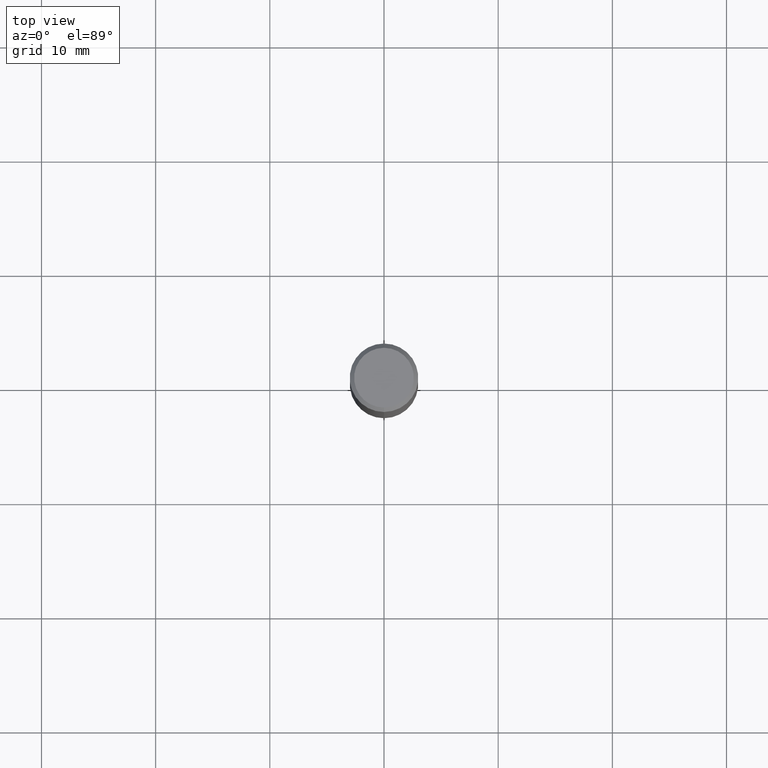
[diagram: clean part render]
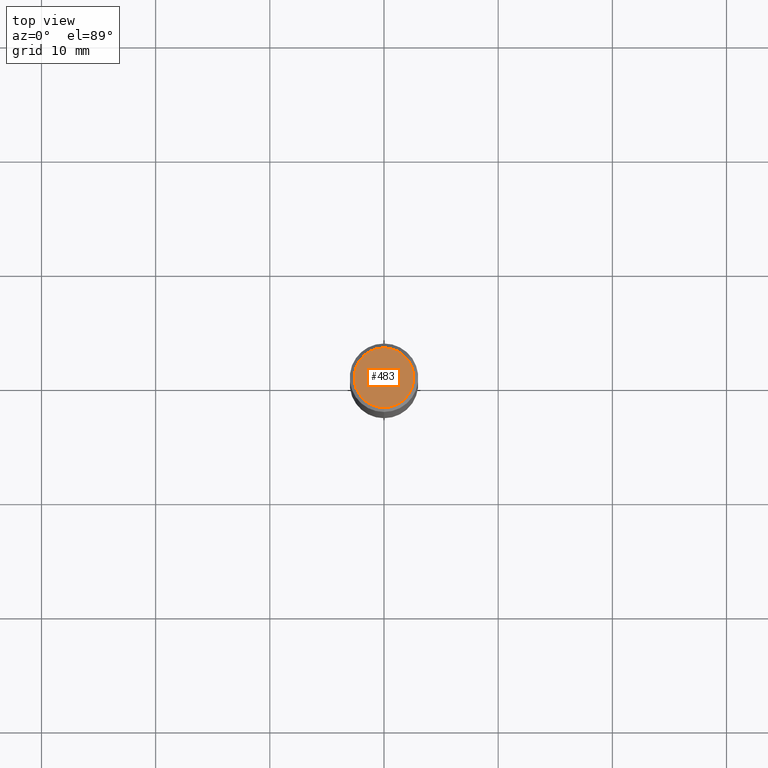
[diagram: same view with one face highlighted and labeled with its STEP entity id]
A machine part, top view. The second image highlights one B-rep face of the part: STEP entity #483.
In plain terms, the highlighted planar face has unit normal (0, -0, -1).
Its self-contained STEP definition (entity closure, byte-faithful):
#13 = DIRECTION ( 'NONE',  ( 2.445721087227315994E-29, -3.491120058031798950E-15, -1.000000000000000000 ) ) ;
#51 = AXIS2_PLACEMENT_3D ( 'NONE', #412, #488, #270 ) ;
#55 = EDGE_LOOP ( 'NONE', ( #429, #92 ) ) ;
#81 = CARTESIAN_POINT ( 'NONE',  ( 7.723156721521011834E-16, 0.1031000000000000111, -3.887509258146911569E-16 ) ) ;
#92 = ORIENTED_EDGE ( 'NONE', *, *, #500, .T. ) ;
#94 = PLANE ( 'NONE',  #408 ) ;
#123 = CIRCLE ( 'NONE', #51, 0.1031000000000000111 ) ;
#137 = DIRECTION ( 'NONE',  ( 6.982962677686265922E-15, 1.000000000000000000, -3.491120058031798950E-15 ) ) ;
#138 = CARTESIAN_POINT ( 'NONE',  ( 7.199434520694541042E-16, 0.1031000000000000111, -1.353060024532617206E-16 ) ) ;
#161 = EDGE_CURVE ( 'NONE', #460, #180, #551, .T. ) ;
#180 = VERTEX_POINT ( 'NONE', #200 ) ;
#200 = CARTESIAN_POINT ( 'NONE',  ( -7.587710785535310407E-16, -0.1031000000000000111, 3.311180301514658338E-16 ) ) ;
#270 = DIRECTION ( 'NONE',  ( -6.982962677686265922E-15, -1.000000000000000000, 3.491120058031798950E-15 ) ) ;
#345 = AXIS2_PLACEMENT_3D ( 'NONE', #565, #554, #469 ) ;
#353 = FACE_OUTER_BOUND ( 'NONE', #55, .T. ) ;
#408 = AXIS2_PLACEMENT_3D ( 'NONE', #138, #13, #137 ) ;
#412 = CARTESIAN_POINT ( 'NONE',  ( 7.059760297607168192E-46, -1.004289602807351628E-31, -2.881644783161265537E-17 ) ) ;
#429 = ORIENTED_EDGE ( 'NONE', *, *, #161, .T. ) ;
#460 = VERTEX_POINT ( 'NONE', #81 ) ;
#469 = DIRECTION ( 'NONE',  ( -6.982962677686265922E-15, -1.000000000000000000, 3.491120058031798950E-15 ) ) ;
#483 = ADVANCED_FACE ( 'NONE', ( #353 ), #94, .F. ) ;
#488 = DIRECTION ( 'NONE',  ( -2.445721087227316555E-29, 3.491120058031798950E-15, 1.000000000000000000 ) ) ;
#500 = EDGE_CURVE ( 'NONE', #180, #460, #123, .T. ) ;
#551 = CIRCLE ( 'NONE', #345, 0.1031000000000000111 ) ;
#554 = DIRECTION ( 'NONE',  ( -2.445721087227316555E-29, 3.491120058031798950E-15, 1.000000000000000000 ) ) ;
#565 = CARTESIAN_POINT ( 'NONE',  ( 7.059760297607168192E-46, -1.004289602807351628E-31, -2.881644783161265537E-17 ) ) ;